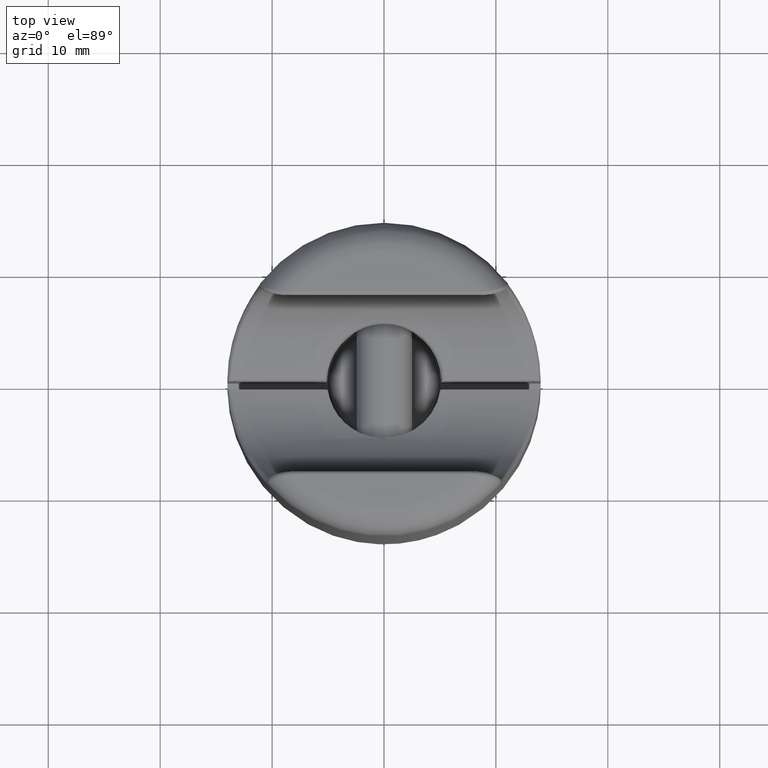
[diagram: clean part render]
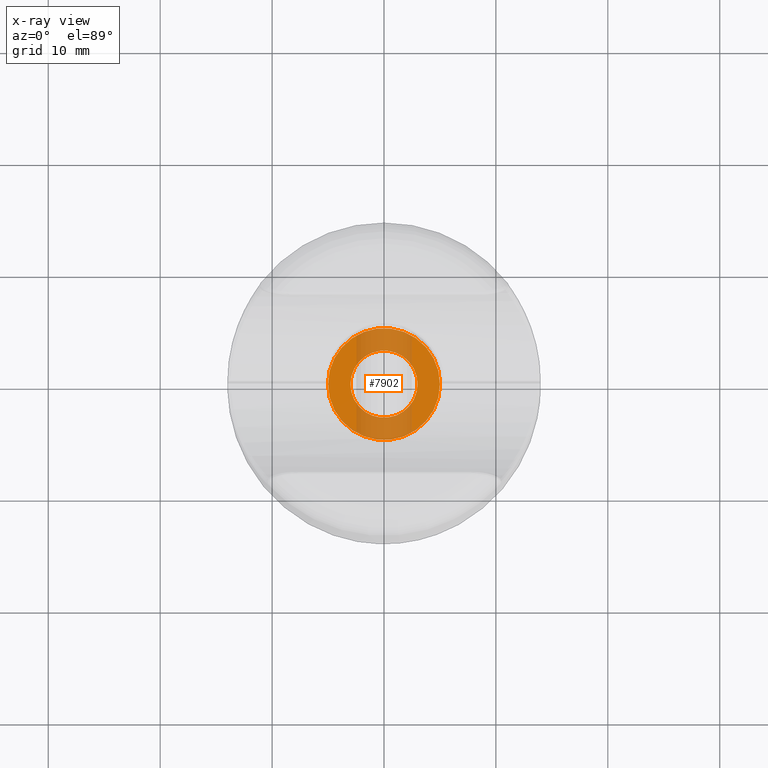
[diagram: x-ray — body ghosted, one internal face saturated and labeled with its STEP entity id]
A machine part, top view, then the same camera in x-ray: the body is ghosted and one INTERNAL B-rep face — a face not visible from any outside direction — is saturated and labeled: STEP entity #7902.
In plain terms, the highlighted planar face has unit normal (0, 0, 1).
Its self-contained STEP definition (entity closure, byte-faithful):
#659 = VERTEX_POINT ( 'NONE', #4665 ) ;
#2044 = FACE_OUTER_BOUND ( 'NONE', #11594, .T. ) ;
#2061 = DIRECTION ( 'NONE',  ( 0.000000000000000000, 0.000000000000000000, 1.000000000000000000 ) ) ;
#2493 = CARTESIAN_POINT ( 'NONE',  ( 0.000000000000000000, 0.000000000000000000, 0.000000000000000000 ) ) ;
#2696 = VERTEX_POINT ( 'NONE', #16011 ) ;
#2733 = AXIS2_PLACEMENT_3D ( 'NONE', #14458, #19454, #8082 ) ;
#3588 = CARTESIAN_POINT ( 'NONE',  ( 0.000000000000000000, 0.000000000000000000, 0.000000000000000000 ) ) ;
#3667 = DIRECTION ( 'NONE',  ( -0.000000000000000000, -1.000000000000000000, -0.000000000000000000 ) ) ;
#4238 = AXIS2_PLACEMENT_3D ( 'NONE', #2493, #13797, #11953 ) ;
#4653 = DIRECTION ( 'NONE',  ( -0.000000000000000000, -1.000000000000000000, -0.000000000000000000 ) ) ;
#4665 = CARTESIAN_POINT ( 'NONE',  ( 3.673940397442060361E-16, 0.000000000000000000, -3.000000000000000444 ) ) ;
#5492 = CARTESIAN_POINT ( 'NONE',  ( 0.000000000000000000, 0.000000000000000000, 2.999999999999896083 ) ) ;
#5877 = VERTEX_POINT ( 'NONE', #13817 ) ;
#6347 = DIRECTION ( 'NONE',  ( 0.000000000000000000, 0.000000000000000000, 1.000000000000000000 ) ) ;
#6384 = AXIS2_PLACEMENT_3D ( 'NONE', #11089, #4653, #6347 ) ;
#7637 = EDGE_CURVE ( 'NONE', #2696, #5877, #13327, .T. ) ;
#7786 = ORIENTED_EDGE ( 'NONE', *, *, #11367, .F. ) ;
#7902 = ADVANCED_FACE ( 'NONE', ( #19575, #2044 ), #10443, .F. ) ;
#8082 = DIRECTION ( 'NONE',  ( 0.000000000000000000, 0.000000000000000000, 1.000000000000000000 ) ) ;
#8556 = ORIENTED_EDGE ( 'NONE', *, *, #17738, .F. ) ;
#8615 = VERTEX_POINT ( 'NONE', #5492 ) ;
#8781 = CARTESIAN_POINT ( 'NONE',  ( 0.000000000000000000, 0.000000000000000000, 0.000000000000000000 ) ) ;
#9712 = ORIENTED_EDGE ( 'NONE', *, *, #11480, .F. ) ;
#10443 = PLANE ( 'NONE',  #13462 ) ;
#11089 = CARTESIAN_POINT ( 'NONE',  ( 0.000000000000000000, 0.000000000000000000, 0.000000000000000000 ) ) ;
#11367 = EDGE_CURVE ( 'NONE', #5877, #2696, #12137, .T. ) ;
#11480 = EDGE_CURVE ( 'NONE', #8615, #659, #15388, .T. ) ;
#11594 = EDGE_LOOP ( 'NONE', ( #7786, #19250 ) ) ;
#11953 = DIRECTION ( 'NONE',  ( 0.000000000000000000, 0.000000000000000000, 1.000000000000000000 ) ) ;
#12065 = DIRECTION ( 'NONE',  ( 0.000000000000000000, 1.000000000000000000, 0.000000000000000000 ) ) ;
#12137 = CIRCLE ( 'NONE', #4238, 4.999999999999825917 ) ;
#12273 = CIRCLE ( 'NONE', #20509, 2.999999999999896083 ) ;
#13327 = CIRCLE ( 'NONE', #2733, 4.999999999999825917 ) ;
#13462 = AXIS2_PLACEMENT_3D ( 'NONE', #8781, #12065, #15413 ) ;
#13543 = EDGE_LOOP ( 'NONE', ( #9712, #8556 ) ) ;
#13797 = DIRECTION ( 'NONE',  ( 0.000000000000000000, 1.000000000000000000, 0.000000000000000000 ) ) ;
#13817 = CARTESIAN_POINT ( 'NONE',  ( 0.000000000000000000, 0.000000000000000000, -5.000000000000000000 ) ) ;
#14458 = CARTESIAN_POINT ( 'NONE',  ( 0.000000000000000000, 0.000000000000000000, 0.000000000000000000 ) ) ;
#15388 = CIRCLE ( 'NONE', #6384, 2.999999999999896083 ) ;
#15413 = DIRECTION ( 'NONE',  ( 0.000000000000000000, 0.000000000000000000, 1.000000000000000000 ) ) ;
#16011 = CARTESIAN_POINT ( 'NONE',  ( 6.123233995736767268E-16, 0.000000000000000000, 5.000000000000000000 ) ) ;
#17738 = EDGE_CURVE ( 'NONE', #659, #8615, #12273, .T. ) ;
#19250 = ORIENTED_EDGE ( 'NONE', *, *, #7637, .F. ) ;
#19454 = DIRECTION ( 'NONE',  ( 0.000000000000000000, 1.000000000000000000, 0.000000000000000000 ) ) ;
#19575 = FACE_BOUND ( 'NONE', #13543, .T. ) ;
#20509 = AXIS2_PLACEMENT_3D ( 'NONE', #3588, #3667, #2061 ) ;